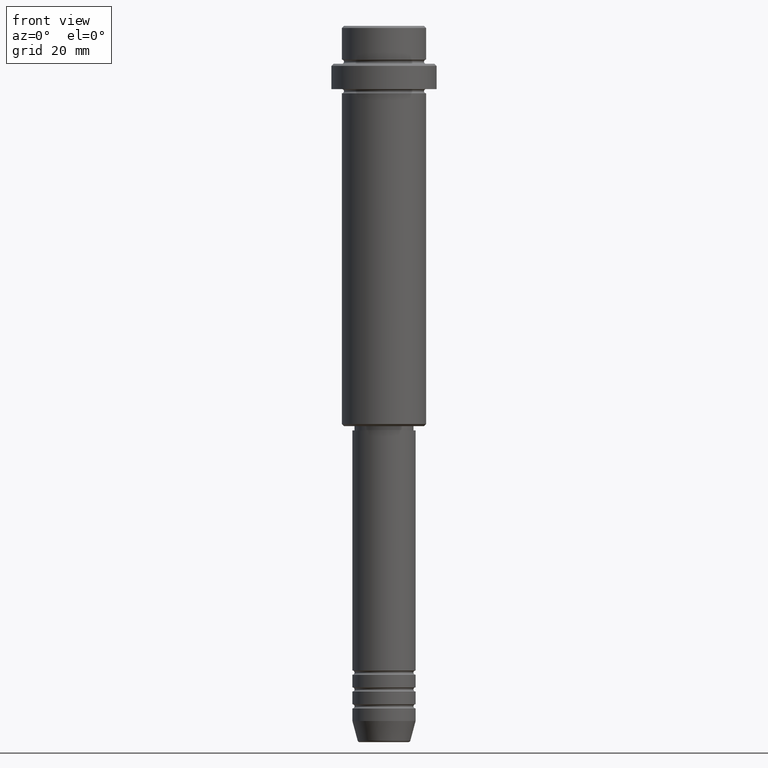
[diagram: clean part render]
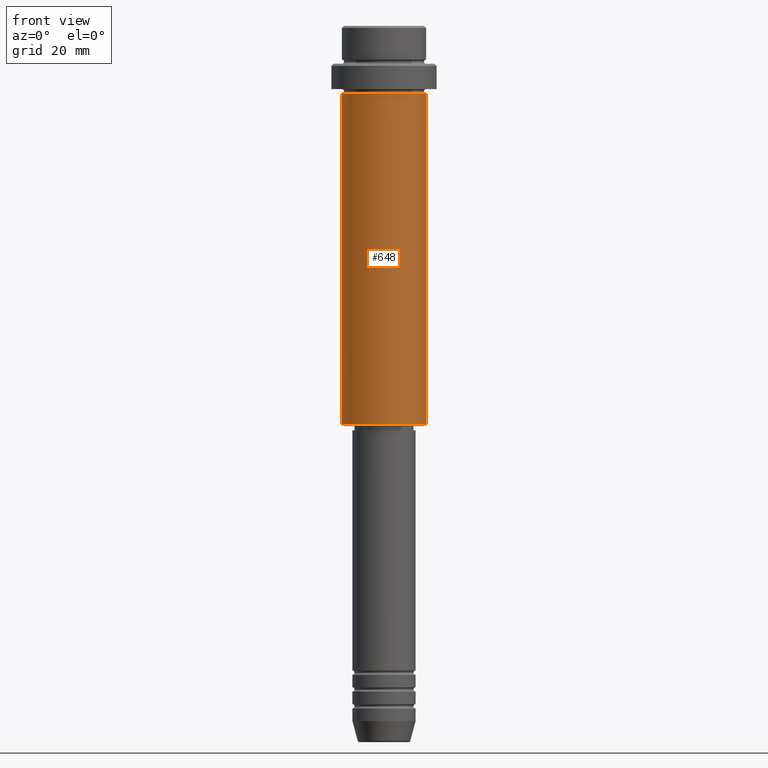
[diagram: same view with one face highlighted and labeled with its STEP entity id]
A machine part, front view. The second image highlights one B-rep face of the part: STEP entity #648.
In plain terms, the highlighted cylindrical surface (partial cylindrical patch) has radius 10 mm, axis along (-0, -0, 1).
Its self-contained STEP definition (entity closure, byte-faithful):
#14 = AXIS2_PLACEMENT_3D ( 'NONE', #466, #1041, #863 ) ;
#39 = VECTOR ( 'NONE', #1232, 1000.000000000000000 ) ;
#108 = DIRECTION ( 'NONE',  ( -0.000000000000000000, -0.000000000000000000, 1.000000000000000000 ) ) ;
#140 = CARTESIAN_POINT ( 'NONE',  ( 10.00000000000000000, 0.000000000000000000, -16.00000000000000000 ) ) ;
#163 = CARTESIAN_POINT ( 'NONE',  ( 10.00000000000000000, 0.000000000000000000, 0.000000000000000000 ) ) ;
#247 = ORIENTED_EDGE ( 'NONE', *, *, #462, .F. ) ;
#306 = EDGE_CURVE ( 'NONE', #867, #907, #357, .T. ) ;
#308 = CARTESIAN_POINT ( 'NONE',  ( 10.00000000000000000, 0.000000000000000000, -94.49999999999997158 ) ) ;
#357 = LINE ( 'NONE', #792, #1246 ) ;
#376 = EDGE_CURVE ( 'NONE', #1200, #914, #1360, .T. ) ;
#378 = CYLINDRICAL_SURFACE ( 'NONE', #14, 10.00000000000000000 ) ;
#431 = CARTESIAN_POINT ( 'NONE',  ( -10.00000000000000000, 1.224646799147353256E-15, -94.49999999999997158 ) ) ;
#462 = EDGE_CURVE ( 'NONE', #907, #914, #992, .T. ) ;
#466 = CARTESIAN_POINT ( 'NONE',  ( 0.000000000000000000, 0.000000000000000000, 0.000000000000000000 ) ) ;
#557 = ORIENTED_EDGE ( 'NONE', *, *, #1137, .T. ) ;
#600 = FACE_OUTER_BOUND ( 'NONE', #1167, .T. ) ;
#604 = AXIS2_PLACEMENT_3D ( 'NONE', #831, #826, #1354 ) ;
#648 = ADVANCED_FACE ( 'NONE', ( #600 ), #378, .T. ) ;
#792 = CARTESIAN_POINT ( 'NONE',  ( -10.00000000000000000, 1.224646799147353256E-15, 0.000000000000000000 ) ) ;
#826 = DIRECTION ( 'NONE',  ( -0.000000000000000000, -0.000000000000000000, 1.000000000000000000 ) ) ;
#831 = CARTESIAN_POINT ( 'NONE',  ( 0.000000000000000000, 0.000000000000000000, -94.49999999999997158 ) ) ;
#863 = DIRECTION ( 'NONE',  ( 1.000000000000000000, 0.000000000000000000, 0.000000000000000000 ) ) ;
#867 = VERTEX_POINT ( 'NONE', #431 ) ;
#899 = ORIENTED_EDGE ( 'NONE', *, *, #376, .T. ) ;
#907 = VERTEX_POINT ( 'NONE', #1089 ) ;
#914 = VERTEX_POINT ( 'NONE', #140 ) ;
#966 = CARTESIAN_POINT ( 'NONE',  ( 0.000000000000000000, 0.000000000000000000, -16.00000000000000000 ) ) ;
#967 = AXIS2_PLACEMENT_3D ( 'NONE', #966, #108, #1411 ) ;
#992 = CIRCLE ( 'NONE', #967, 10.00000000000000000 ) ;
#1041 = DIRECTION ( 'NONE',  ( -0.000000000000000000, -0.000000000000000000, 1.000000000000000000 ) ) ;
#1089 = CARTESIAN_POINT ( 'NONE',  ( -10.00000000000000000, 1.224646799147353256E-15, -16.00000000000000000 ) ) ;
#1137 = EDGE_CURVE ( 'NONE', #867, #1200, #1266, .T. ) ;
#1167 = EDGE_LOOP ( 'NONE', ( #1178, #557, #899, #247 ) ) ;
#1178 = ORIENTED_EDGE ( 'NONE', *, *, #306, .F. ) ;
#1200 = VERTEX_POINT ( 'NONE', #308 ) ;
#1217 = DIRECTION ( 'NONE',  ( -0.000000000000000000, -0.000000000000000000, 1.000000000000000000 ) ) ;
#1232 = DIRECTION ( 'NONE',  ( -0.000000000000000000, -0.000000000000000000, 1.000000000000000000 ) ) ;
#1246 = VECTOR ( 'NONE', #1217, 1000.000000000000000 ) ;
#1266 = CIRCLE ( 'NONE', #604, 10.00000000000000000 ) ;
#1354 = DIRECTION ( 'NONE',  ( -1.000000000000000000, 0.000000000000000000, 0.000000000000000000 ) ) ;
#1360 = LINE ( 'NONE', #163, #39 ) ;
#1411 = DIRECTION ( 'NONE',  ( 1.000000000000000000, 0.000000000000000000, 0.000000000000000000 ) ) ;